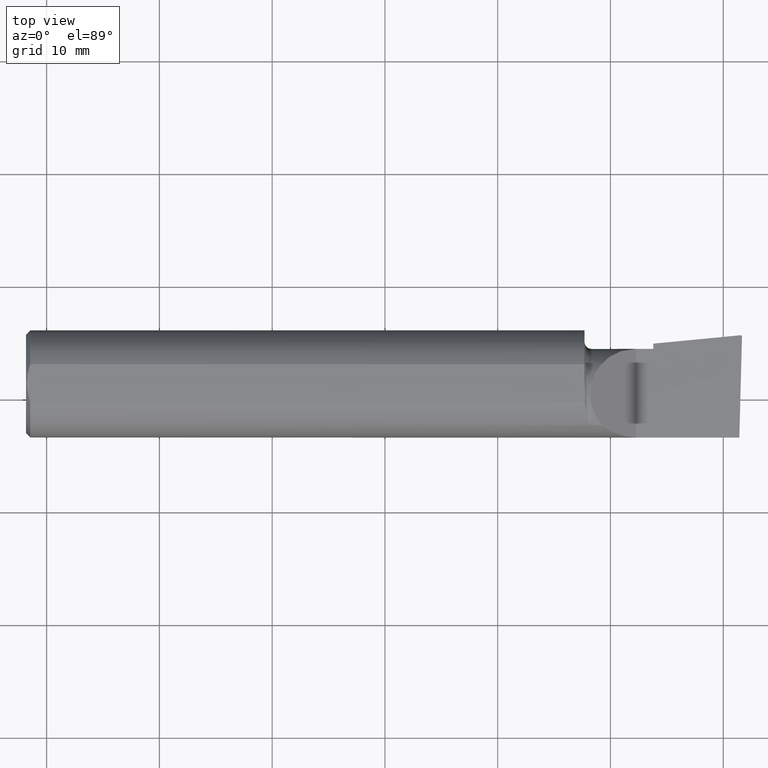
[diagram: clean part render]
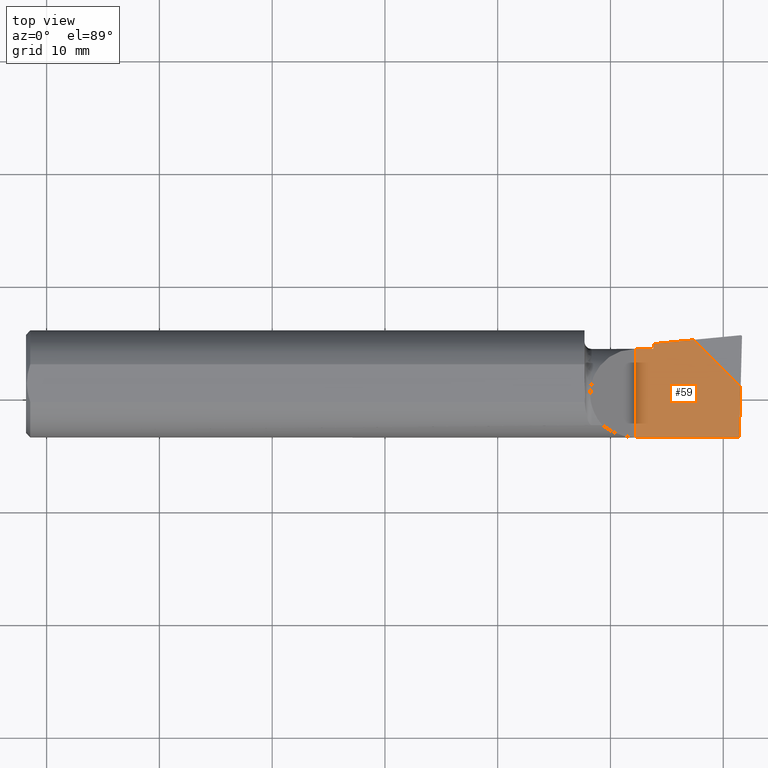
[diagram: same view with one face highlighted and labeled with its STEP entity id]
A machine part, top view. The second image highlights one B-rep face of the part: STEP entity #59.
In plain terms, the highlighted planar face has unit normal (0, 0, -1).
Its self-contained STEP definition (entity closure, byte-faithful):
#1 = EDGE_CURVE ( 'NONE', #235, #543, #585, .T. ) ;
#7 = EDGE_CURVE ( 'NONE', #647, #1105, #13, .T. ) ;
#13 = LINE ( 'NONE', #1177, #44 ) ;
#22 = CARTESIAN_POINT ( 'NONE',  ( 2.129999999999999893, 0.2000000000000000389, -3.414809992080329023E-17 ) ) ;
#44 = VECTOR ( 'NONE', #309, 39.37007874015748854 ) ;
#52 = CARTESIAN_POINT ( 'NONE',  ( 2.189999999999999947, 0.1408003950587605746, -3.414809992080329023E-17 ) ) ;
#59 = ADVANCED_FACE ( 'NONE', ( #130 ), #329, .F. ) ;
#72 = CARTESIAN_POINT ( 'NONE',  ( 2.189999999999999947, 0.1226500000000000090, -3.414809992080329023E-17 ) ) ;
#78 = DIRECTION ( 'NONE',  ( -0.9953961983671780756, -0.09584575252023204428, 0.000000000000000000 ) ) ;
#126 = DIRECTION ( 'NONE',  ( 1.000000000000000000, 0.000000000000000000, 0.000000000000000000 ) ) ;
#130 = FACE_OUTER_BOUND ( 'NONE', #808, .T. ) ;
#156 = EDGE_CURVE ( 'NONE', #744, #498, #603, .T. ) ;
#173 = AXIS2_PLACEMENT_3D ( 'NONE', #230, #819, #998 ) ;
#194 = CARTESIAN_POINT ( 'NONE',  ( 2.331248884311882819, 0.1544011156881172075, 0.000000000000000000 ) ) ;
#206 = CARTESIAN_POINT ( 'NONE',  ( 2.500000000000000000, -0.1873499999999999888, -3.414809992080329023E-17 ) ) ;
#230 = CARTESIAN_POINT ( 'NONE',  ( 2.129999999999999893, 0.2000000000000000389, -3.414809992080329023E-17 ) ) ;
#235 = VERTEX_POINT ( 'NONE', #737 ) ;
#281 = EDGE_CURVE ( 'NONE', #235, #1105, #825, .T. ) ;
#309 = DIRECTION ( 'NONE',  ( 0.7071067811865440200, -0.7071067811865509034, 0.000000000000000000 ) ) ;
#329 = PLANE ( 'NONE',  #173 ) ;
#330 = EDGE_CURVE ( 'NONE', #498, #815, #485, .T. ) ;
#386 = CARTESIAN_POINT ( 'NONE',  ( 2.189999999999999947, 0.2000000000000000389, -3.414809992080329023E-17 ) ) ;
#396 = ORIENTED_EDGE ( 'NONE', *, *, #1180, .F. ) ;
#421 = ORIENTED_EDGE ( 'NONE', *, *, #1, .F. ) ;
#475 = CARTESIAN_POINT ( 'NONE',  ( 2.129999999999999893, 0.1226500000000000090, -3.414809992080329023E-17 ) ) ;
#478 = ORIENTED_EDGE ( 'NONE', *, *, #7, .F. ) ;
#485 = LINE ( 'NONE', #386, #1204 ) ;
#498 = VERTEX_POINT ( 'NONE', #72 ) ;
#543 = VERTEX_POINT ( 'NONE', #732 ) ;
#571 = EDGE_CURVE ( 'NONE', #647, #815, #1044, .T. ) ;
#584 = DIRECTION ( 'NONE',  ( 0.000000000000000000, 1.000000000000000000, 0.000000000000000000 ) ) ;
#585 = LINE ( 'NONE', #206, #1080 ) ;
#603 = LINE ( 'NONE', #1097, #1011 ) ;
#641 = DIRECTION ( 'NONE',  ( 0.02634618898897572378, 0.9996528789163552364, 0.000000000000000000 ) ) ;
#647 = VERTEX_POINT ( 'NONE', #194 ) ;
#654 = VECTOR ( 'NONE', #78, 39.37007874015747433 ) ;
#676 = ORIENTED_EDGE ( 'NONE', *, *, #281, .T. ) ;
#732 = CARTESIAN_POINT ( 'NONE',  ( 2.129999999999999893, -0.1873499999999999888, -3.414809992080329023E-17 ) ) ;
#737 = CARTESIAN_POINT ( 'NONE',  ( 2.490564789181363814, -0.1873500000000000165, -1.024442997624098707E-16 ) ) ;
#744 = VERTEX_POINT ( 'NONE', #475 ) ;
#801 = ORIENTED_EDGE ( 'NONE', *, *, #571, .T. ) ;
#808 = EDGE_LOOP ( 'NONE', ( #676, #478, #801, #997, #902, #396, #421 ) ) ;
#815 = VERTEX_POINT ( 'NONE', #52 ) ;
#819 = DIRECTION ( 'NONE',  ( -0.000000000000000000, 0.000000000000000000, -1.000000000000000000 ) ) ;
#825 = LINE ( 'NONE', #1220, #904 ) ;
#837 = CARTESIAN_POINT ( 'NONE',  ( 2.136199093069333532, 0.1356199569382419423, -3.414809992080329023E-17 ) ) ;
#902 = ORIENTED_EDGE ( 'NONE', *, *, #156, .F. ) ;
#904 = VECTOR ( 'NONE', #641, 39.37007874015748143 ) ;
#958 = CARTESIAN_POINT ( 'NONE',  ( 2.495249464531276828, -0.009599464531278828483, 0.000000000000000000 ) ) ;
#968 = DIRECTION ( 'NONE',  ( -1.000000000000000000, -0.000000000000000000, -0.000000000000000000 ) ) ;
#978 = LINE ( 'NONE', #22, #1145 ) ;
#997 = ORIENTED_EDGE ( 'NONE', *, *, #330, .F. ) ;
#998 = DIRECTION ( 'NONE',  ( -1.000000000000000000, 0.000000000000000000, 0.000000000000000000 ) ) ;
#1011 = VECTOR ( 'NONE', #126, 39.37007874015748143 ) ;
#1044 = LINE ( 'NONE', #837, #654 ) ;
#1075 = DIRECTION ( 'NONE',  ( -0.000000000000000000, 1.000000000000000000, -0.000000000000000000 ) ) ;
#1080 = VECTOR ( 'NONE', #968, 39.37007874015748143 ) ;
#1097 = CARTESIAN_POINT ( 'NONE',  ( 1.949999999999999956, 0.1226500000000000090, -3.414809992080329023E-17 ) ) ;
#1105 = VERTEX_POINT ( 'NONE', #958 ) ;
#1145 = VECTOR ( 'NONE', #1075, 39.37007874015748143 ) ;
#1177 = CARTESIAN_POINT ( 'NONE',  ( 2.314999999999999947, 0.1706500000000001349, 0.000000000000000000 ) ) ;
#1180 = EDGE_CURVE ( 'NONE', #543, #744, #978, .T. ) ;
#1204 = VECTOR ( 'NONE', #584, 39.37007874015748143 ) ;
#1220 = CARTESIAN_POINT ( 'NONE',  ( 2.500516167212282870, 0.1902349213704785380, -3.414809992080329023E-17 ) ) ;